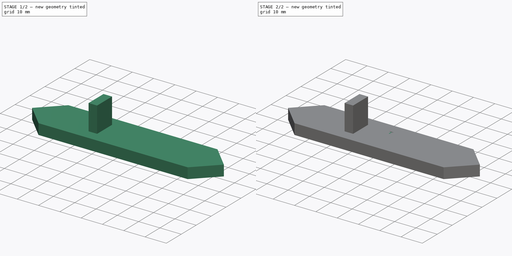
[diagram: build sequence overview — one tinted view per stage of 2, left to right]
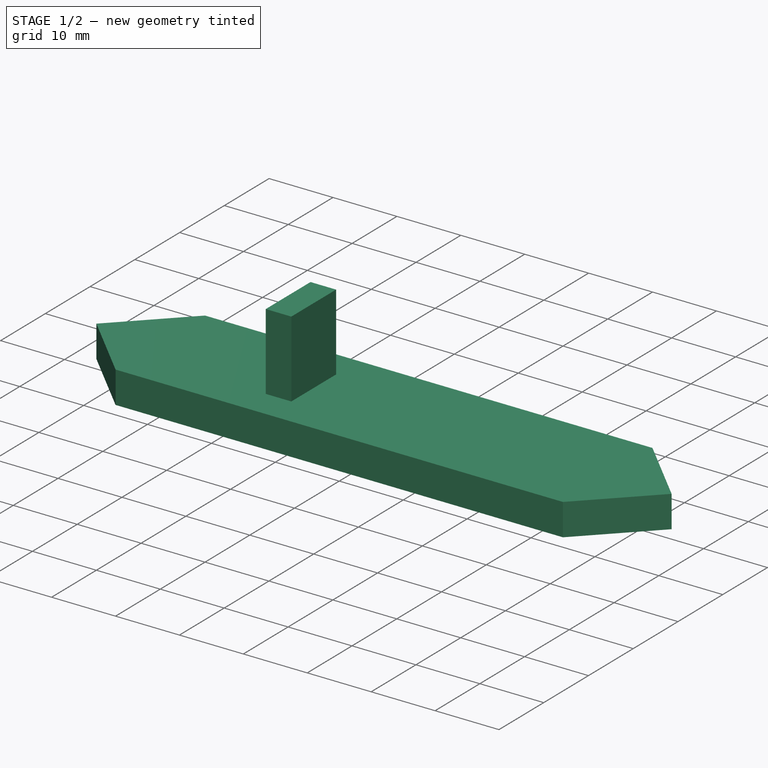
[diagram: stage 1 of 2 — iso view after this stage's code; geometry added in this stage tinted green]
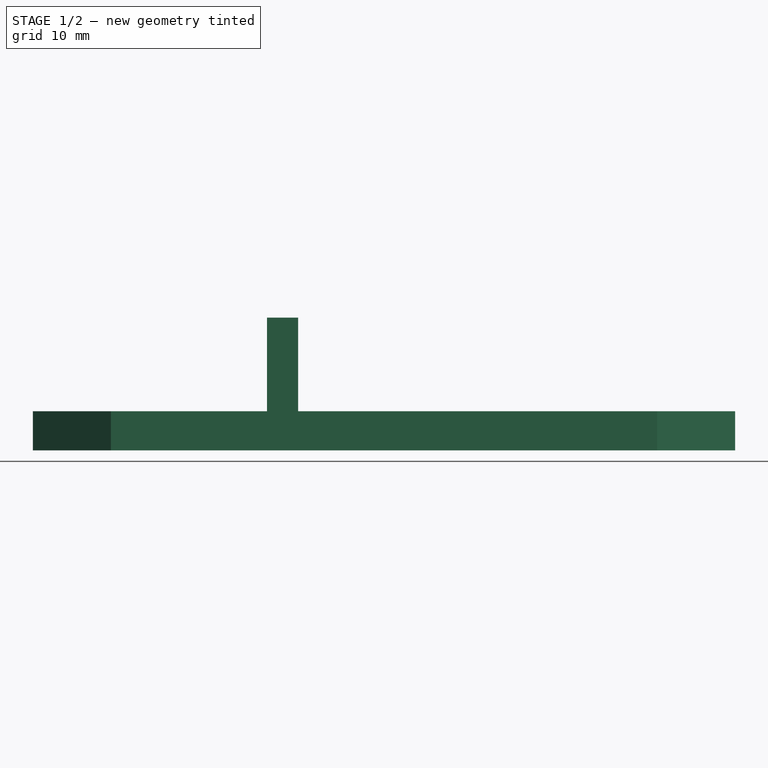
[diagram: stage 1 of 2 — front view after this stage's code; geometry added in this stage tinted green]
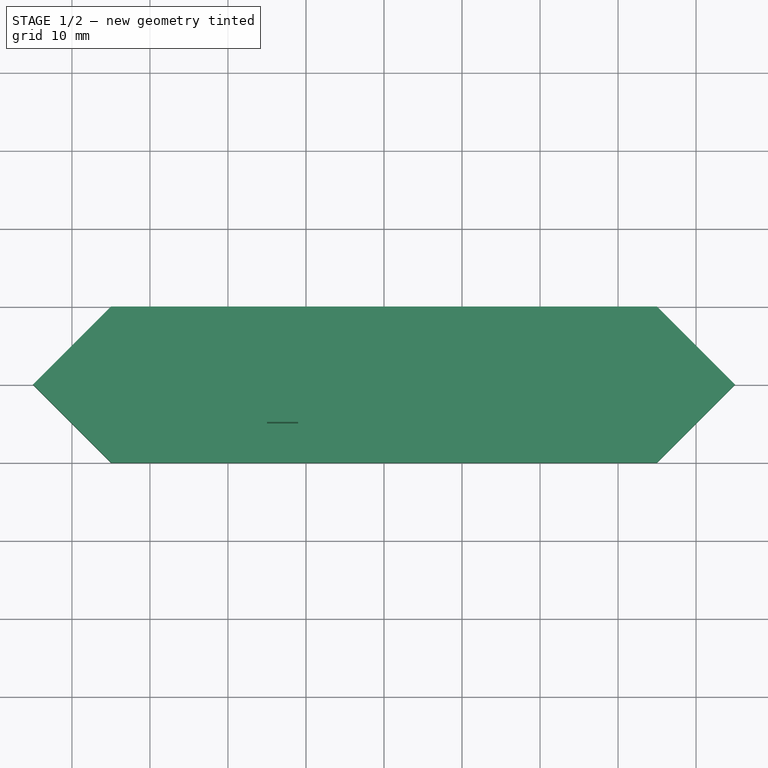
[diagram: stage 1 of 2 — top view after this stage's code; geometry added in this stage tinted green]
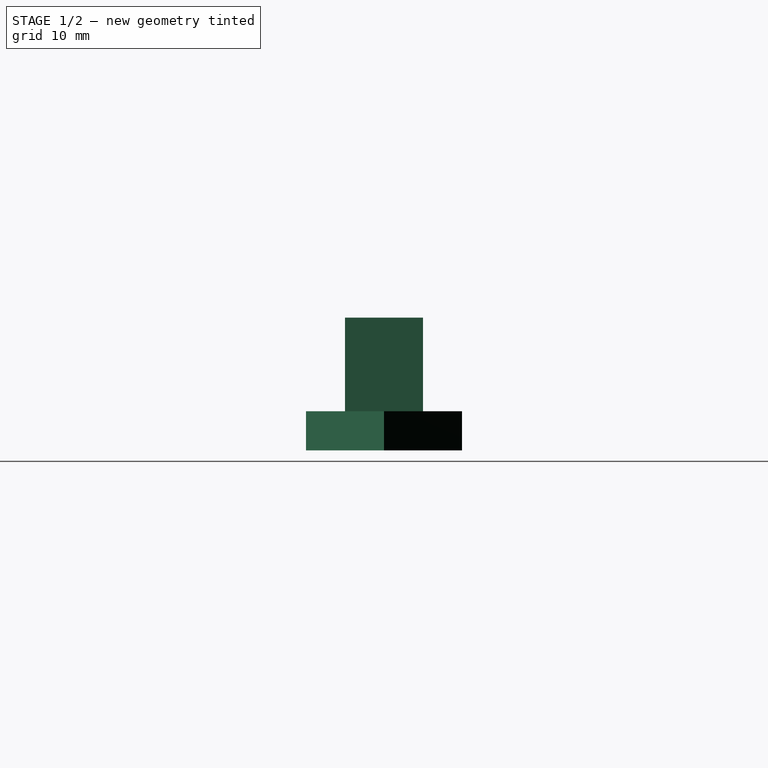
[diagram: stage 1 of 2 — right view after this stage's code; geometry added in this stage tinted green]
FCSTD DOCUMENT  (FreeCAD 0.20R29603 (Git))
Label: Segment_V1
License: All rights reserved
LicenseURL: http://en.wikipedia.org/wiki/All_rights_reserved
objects: Sketcher::SketchObject×3, PartDesign::Pad×2, PartDesign::Pocket×1, PartDesign::Body×1
note: 10 computed .brp shape members not serialized (recipe doc carries the construction recipe); baked Part::Feature solids carry a one-line shape summary decoded from their .brp

FEATURE [Sketcher::SketchObject] Sketch
  FullyConstrained = true
  MapMode = 5
  Support = -> [XY_Plane]
  sketch-geometry (6):
    g0: LineSegment StartX=-35 StartY=10 StartZ=0 EndX=35 EndY=10 EndZ=0
    g1: LineSegment StartX=-35 StartY=-10 StartZ=0 EndX=35 EndY=-10 EndZ=0
    g2: LineSegment StartX=35 StartY=10 StartZ=0 EndX=45 EndY=0 EndZ=0
    g3: LineSegment StartX=35 StartY=-10 StartZ=0 EndX=45 EndY=0 EndZ=0
    g4: LineSegment StartX=-35 StartY=-10 StartZ=0 EndX=-45 EndY=0 EndZ=0
    g5: LineSegment StartX=-35 StartY=10 StartZ=0 EndX=-45 EndY=0 EndZ=0
  constraints (16):
    c: Horizontal(g0)
    c: Horizontal(g1)
    c: Coincident(g2,g0)
    c: PointOnObject(g2,g-1)
    c: Coincident(g3,g1)
    c: Coincident(g3,g2)
    c: Coincident(g4,g1)
    c: Coincident(g5,g0)
    c: Coincident(g5,g4)
    c: Angle(g4,g5) = 1.5708
    c: DistanceY(g1,g0) = 20
    c: Angle(g2,g3) = 1.5708
    c: Symmetric(g0,g1,g-1)
    c: Equal(g0,g1)
    c: Symmetric(g4,g2,g-2)
    c: DistanceX(g4,g2) = 90
FEATURE [PartDesign::Pad] Pad
  Direction = (0,0,1)
  Length = 5
  Length2 = 100
  Profile = -> Sketch
  Type = 0
FEATURE [Sketcher::SketchObject] Sketch001
  FullyConstrained = true
  MapMode = 5
  Placement = pos=(0,0,5) rot=(0,0,1;0rad)
  Support = -> [Pad]
  sketch-geometry (4):
    g0: LineSegment StartX=-15 StartY=5 StartZ=0 EndX=-11 EndY=5 EndZ=0
    g1: LineSegment StartX=-11 StartY=5 StartZ=0 EndX=-11 EndY=-5 EndZ=0
    g2: LineSegment StartX=-11 StartY=-5 StartZ=0 EndX=-15 EndY=-5 EndZ=0
    g3: LineSegment StartX=-15 StartY=-5 StartZ=0 EndX=-15 EndY=5 EndZ=0
  constraints (12):
    c: Coincident(g0,g1)
    c: Coincident(g1,g2)
    c: Coincident(g2,g3)
    c: Coincident(g3,g0)
    c: Horizontal(g0)
    c: Horizontal(g2)
    c: Vertical(g1)
    c: Vertical(g3)
    c: DistanceY(g2,g0) = 10
    c: DistanceX(g2,g1) = 4
    c: DistanceX(g2,g-1) = 15
    c: DistanceY(g-1,g0) = 5
FEATURE [PartDesign::Pad] Pad001
  BaseFeature = -> Pad
  Direction = (0,0,1)
  Length = 12
  Length2 = 100
  Profile = -> Sketch001
  Type = 0
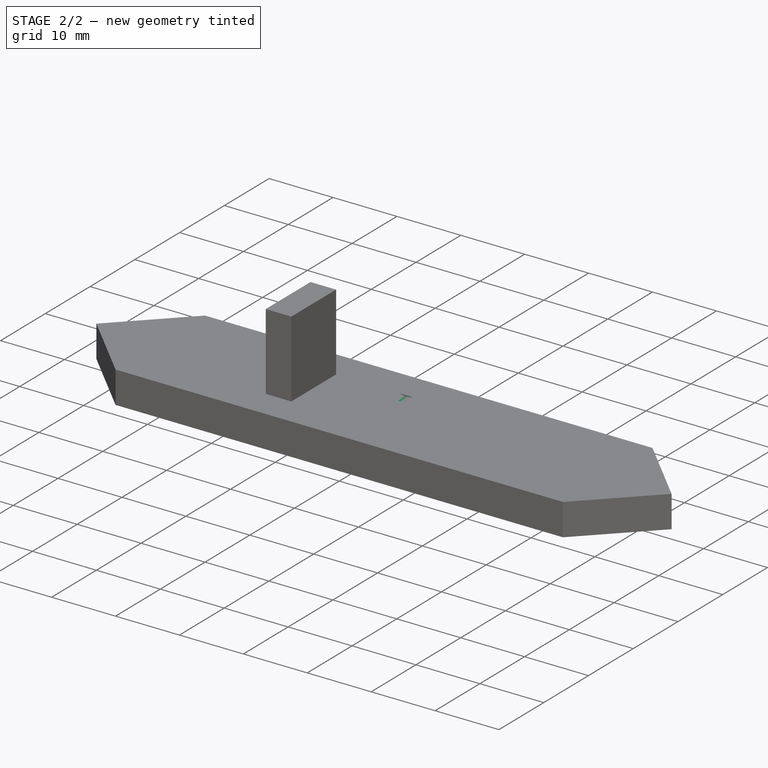
[diagram: stage 2 of 2 — iso view after this stage's code; geometry added in this stage tinted green]
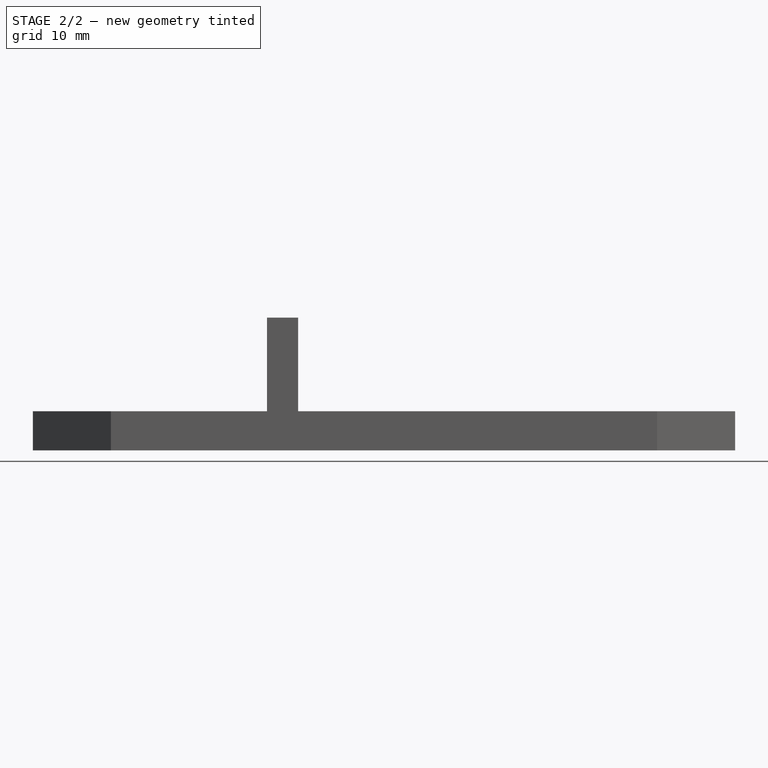
[diagram: stage 2 of 2 — front view after this stage's code; geometry added in this stage tinted green]
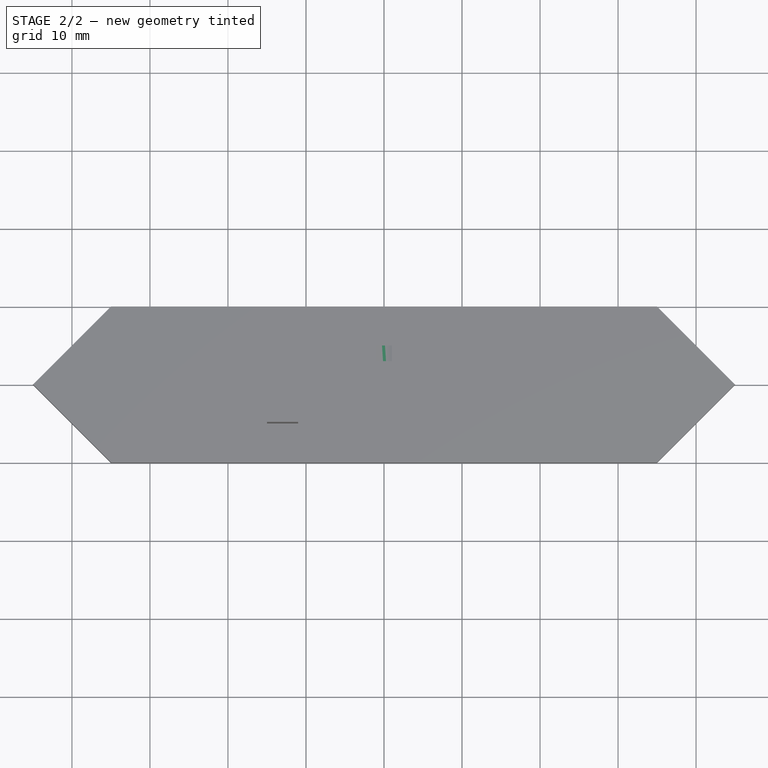
[diagram: stage 2 of 2 — top view after this stage's code; geometry added in this stage tinted green]
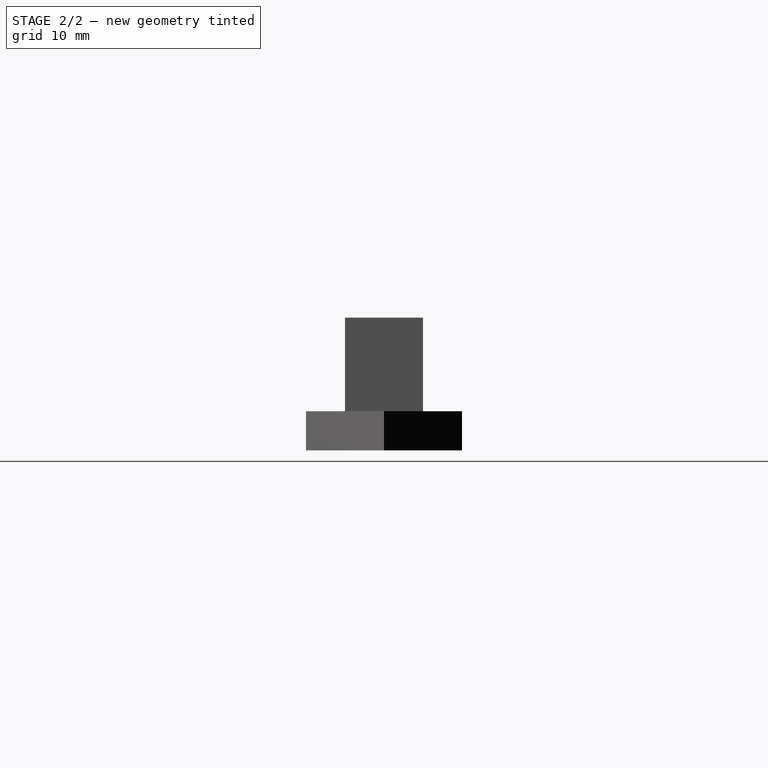
[diagram: stage 2 of 2 — right view after this stage's code; geometry added in this stage tinted green]
FEATURE [Sketcher::SketchObject] Sketch002
  FullyConstrained = true
  MapMode = 5
  Placement = pos=(0,5,0) rot=(0,0.707107,0.707107;3.14159rad)
  Support = -> [Pad001]
  sketch-geometry (4):
    g0: LineSegment StartX=-3.4 StartY=17 StartZ=0 EndX=3.4 EndY=17 EndZ=0
    g1: LineSegment StartX=-3.4 StartY=17 StartZ=0 EndX=-2.6 EndY=7.2 EndZ=0
    g2: LineSegment StartX=3.4 StartY=17 StartZ=0 EndX=2.6 EndY=7.2 EndZ=0
    g3: ArcOfCircle CenterX=0 CenterY=7.41224 CenterZ=0 NormalX=0 NormalY=0 NormalZ=1 AngleXU=0 Radius=2.60865 StartAngle=3.22304 EndAngle=6.20173
  constraints (11):
    c: Horizontal(g0)
    c: Coincident(g1,g0)
    c: Coincident(g2,g0)
    c: DistanceX(g1,g2) = 5.2
    c: DistanceY(g-1,g0) = 17
    c: DistanceY(g-1,g1) = 7.2
    c: DistanceX(g0,g-1) = 3.4
    c: Tangent(g3,g1) = -1.5708
    c: Tangent(g3,g2) = 1.5708
    c: Vertical(g3,g-1)
    c: DistanceX(g-1,g0) = 3.4
FEATURE [PartDesign::Pocket] Pocket
  BaseFeature = -> Pad001
  Direction = (0,-1,2e-16)
  Length = 2
  Length2 = 100
  Profile = -> Sketch002
  Type = 0
FEATURE [PartDesign::Body] Body
  Group = -> [Sketch,Pad,Sketch001,Pad001,Sketch002,Pocket]
  Origin = -> Origin
  Tip = -> Pocket
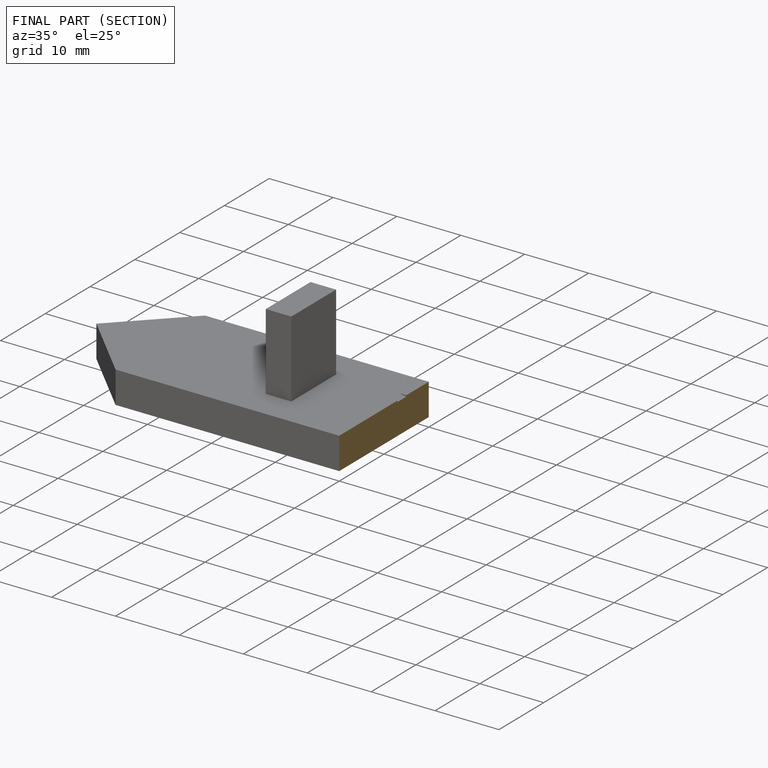
[diagram: finished part — half-section view (interior)]
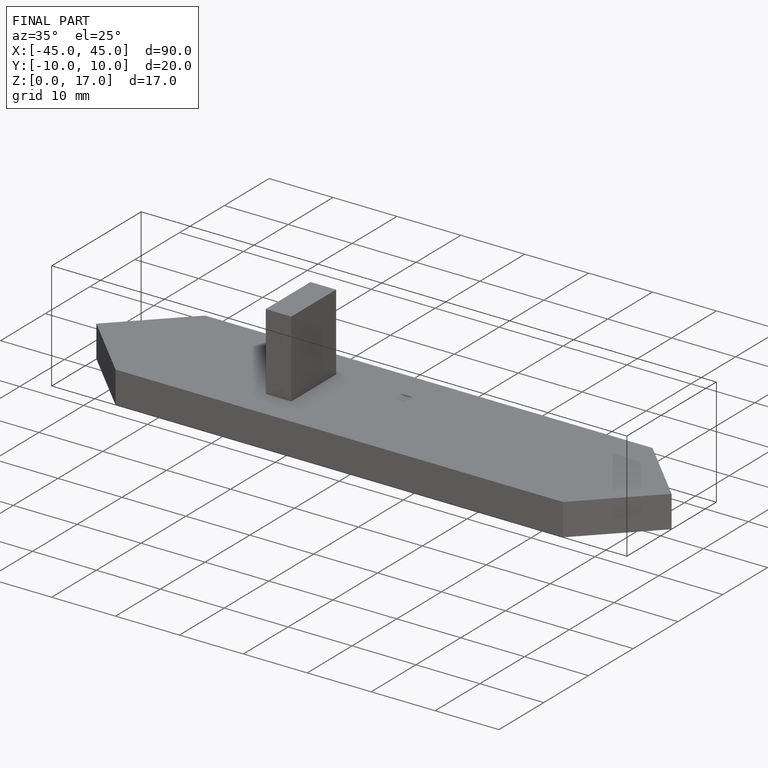
[diagram: finished part — iso view with bounding-box wireframe]
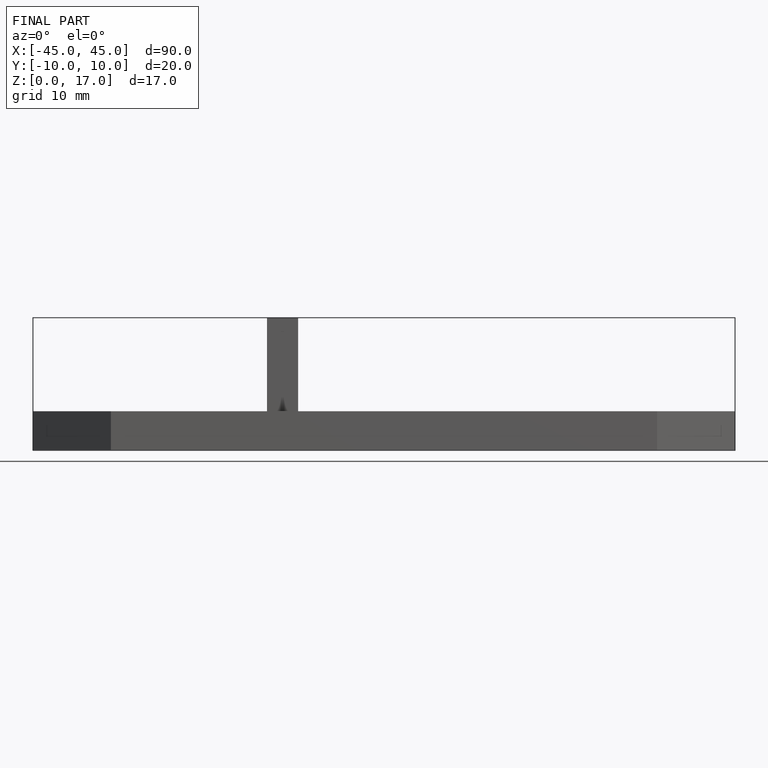
[diagram: finished part — front view with bounding-box wireframe]
